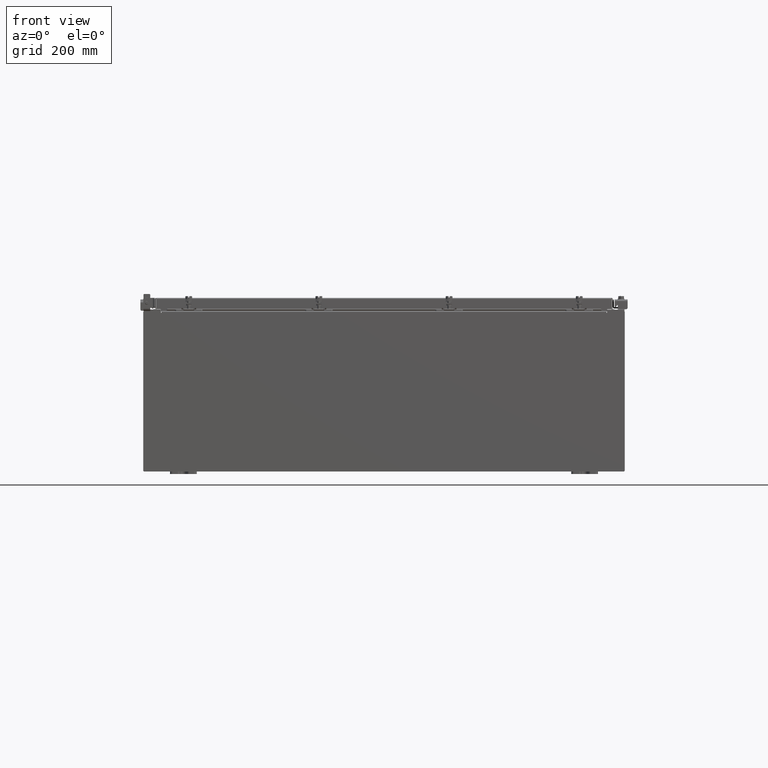
[diagram: clean part render]
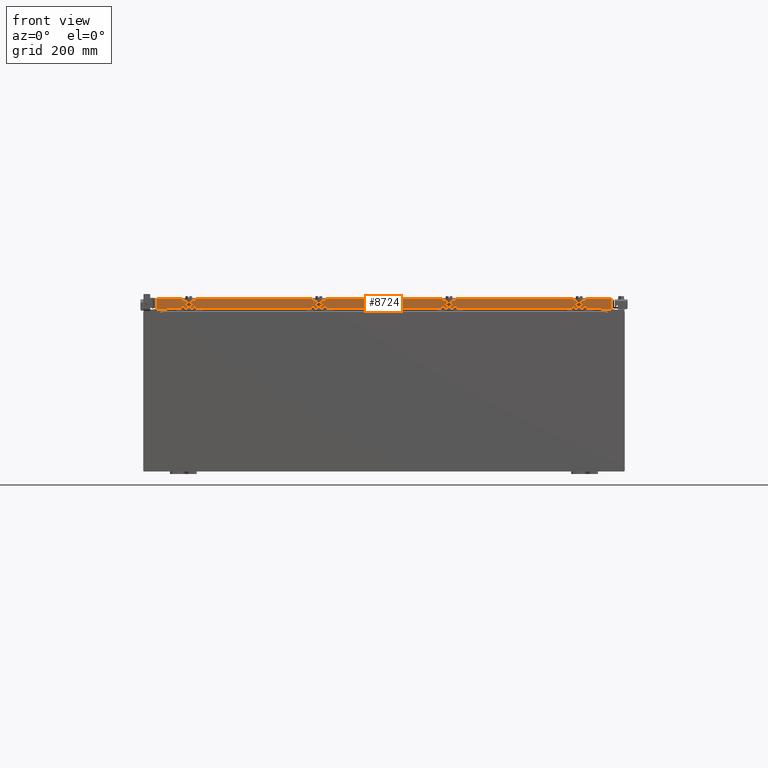
[diagram: same view with one face highlighted and labeled with its STEP entity id]
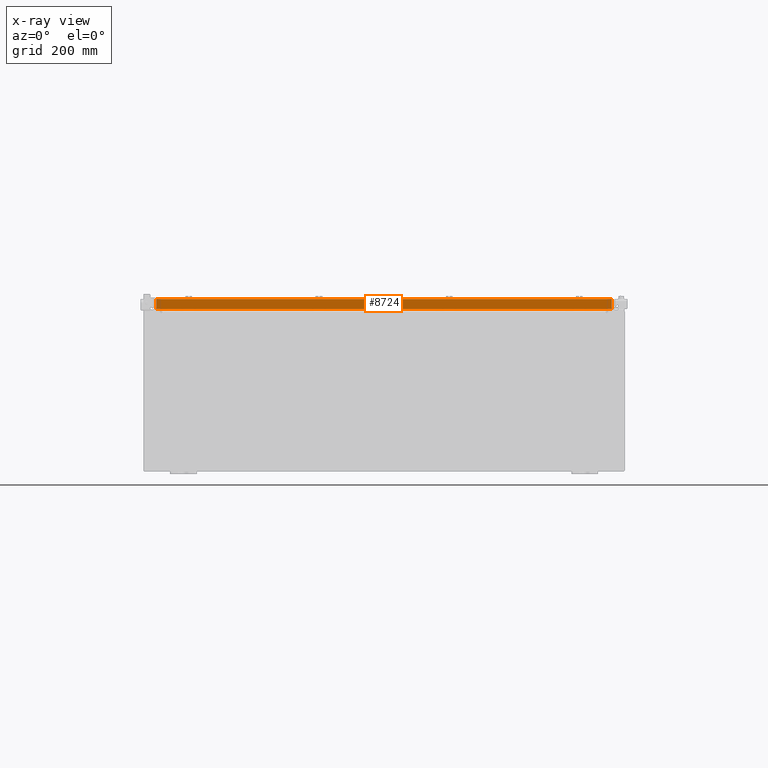
[diagram: x-ray of the same camera — body ghosted, the highlighted face saturated]
A machine part, front view. The second image highlights one B-rep face of the part: STEP entity #8724.
The next image is the same camera in x-ray: the body ghosted, the highlighted face saturated — about 0% of this face is hidden behind the body in this view.
In plain terms, the highlighted planar face has unit normal (-0, 1, -0).
Its self-contained STEP definition (entity closure, byte-faithful):
#721 = LINE ( 'NONE', #1333, #22423 ) ;
#1206 = DIRECTION ( 'NONE',  ( -1.000000000000000000, 0.0000000000000000000, 0.0000000000000000000 ) ) ;
#1333 = CARTESIAN_POINT ( 'NONE',  ( -17.00515786437626900, -17.09400000000000100, 4.808052468849102900E-014 ) ) ;
#2658 = DIRECTION ( 'NONE',  ( -1.000000000000000000, 4.379057701015054300E-047, 1.238552822680358400E-016 ) ) ;
#2684 = VECTOR ( 'NONE', #13430, 39.37007874015748100 ) ;
#3425 = DIRECTION ( 'NONE',  ( 0.0000000000000000000, -2.818880942772360500E-015, -1.000000000000000000 ) ) ;
#5800 = LINE ( 'NONE', #21259, #16393 ) ;
#5904 = CARTESIAN_POINT ( 'NONE',  ( -16.25515786437626900, -17.09399999999999100, -0.8500000000000020900 ) ) ;
#7368 = DIRECTION ( 'NONE',  ( 0.0000000000000000000, 2.818880942772360100E-015, 1.000000000000000000 ) ) ;
#7474 = CARTESIAN_POINT ( 'NONE',  ( 16.25515786437626900, -17.09399999999999100, -0.8500000000000020900 ) ) ;
#8325 = LINE ( 'NONE', #15562, #2684 ) ;
#8724 = ADVANCED_FACE ( 'NONE', ( #17265 ), #11508, .F. ) ;
#9479 = DIRECTION ( 'NONE',  ( -0.0000000000000000000, -2.818880942772360500E-015, -1.000000000000000000 ) ) ;
#9560 = EDGE_CURVE ( 'NONE', #16626, #17229, #721, .T. ) ;
#10503 = ORIENTED_EDGE ( 'NONE', *, *, #14050, .F. ) ;
#11508 = PLANE ( 'NONE',  #14627 ) ;
#11583 = CARTESIAN_POINT ( 'NONE',  ( 17.00515786437626900, -17.09400000000000100, -0.07470000000000015500 ) ) ;
#13184 = CARTESIAN_POINT ( 'NONE',  ( 17.09399999999999800, -17.09400000000000100, -0.8499999999999999800 ) ) ;
#13430 = DIRECTION ( 'NONE',  ( -1.000000000000000000, 4.379057701015054300E-047, 1.238552822680358400E-016 ) ) ;
#13736 = CARTESIAN_POINT ( 'NONE',  ( 17.00515786437626900, -17.09400000000000100, -0.8499999999999999800 ) ) ;
#14050 = EDGE_CURVE ( 'NONE', #16626, #15156, #5800, .T. ) ;
#14627 = AXIS2_PLACEMENT_3D ( 'NONE', #17876, #19988, #7368 ) ;
#15156 = VERTEX_POINT ( 'NONE', #22727 ) ;
#15562 = CARTESIAN_POINT ( 'NONE',  ( 17.09399999999999800, -17.09400000000000100, -0.8499999999999999800 ) ) ;
#15874 = EDGE_CURVE ( 'NONE', #22501, #17229, #8325, .T. ) ;
#15984 = EDGE_CURVE ( 'NONE', #15156, #18755, #23093, .T. ) ;
#16061 = ORIENTED_EDGE ( 'NONE', *, *, #9560, .T. ) ;
#16393 = VECTOR ( 'NONE', #25351, 39.37007874015748100 ) ;
#16626 = VERTEX_POINT ( 'NONE', #22039 ) ;
#17229 = VERTEX_POINT ( 'NONE', #17718 ) ;
#17265 = FACE_OUTER_BOUND ( 'NONE', #19843, .T. ) ;
#17551 = VECTOR ( 'NONE', #9479, 39.37007874015748100 ) ;
#17718 = CARTESIAN_POINT ( 'NONE',  ( -17.00515786437626900, -17.09400000000000100, -0.8499999999999955400 ) ) ;
#17876 = CARTESIAN_POINT ( 'NONE',  ( 0.0000000000000000000, -17.09400000000000100, 4.808052468849102900E-014 ) ) ;
#18755 = VERTEX_POINT ( 'NONE', #13736 ) ;
#19843 = EDGE_LOOP ( 'NONE', ( #10503, #16061, #21831, #19902, #25760, #24534 ) ) ;
#19902 = ORIENTED_EDGE ( 'NONE', *, *, #20629, .F. ) ;
#19988 = DIRECTION ( 'NONE',  ( -3.491332948470575600E-031, 1.000000000000000000, -2.818880942772360100E-015 ) ) ;
#20104 = LINE ( 'NONE', #13184, #24988 ) ;
#20324 = VECTOR ( 'NONE', #1206, 39.37007874015748100 ) ;
#20629 = EDGE_CURVE ( 'NONE', #21838, #22501, #25847, .T. ) ;
#21259 = CARTESIAN_POINT ( 'NONE',  ( 17.09400000000000100, -17.09400000000000100, -0.08770000000000026400 ) ) ;
#21831 = ORIENTED_EDGE ( 'NONE', *, *, #15874, .F. ) ;
#21838 = VERTEX_POINT ( 'NONE', #26770 ) ;
#22039 = CARTESIAN_POINT ( 'NONE',  ( -17.00515786437626900, -17.09400000000000100, -0.08770000000000026400 ) ) ;
#22423 = VECTOR ( 'NONE', #3425, 39.37007874015748100 ) ;
#22501 = VERTEX_POINT ( 'NONE', #5904 ) ;
#22727 = CARTESIAN_POINT ( 'NONE',  ( 17.00515786437626900, -17.09400000000000100, -0.08770000000000026400 ) ) ;
#22807 = EDGE_CURVE ( 'NONE', #18755, #21838, #20104, .T. ) ;
#23093 = LINE ( 'NONE', #11583, #17551 ) ;
#24534 = ORIENTED_EDGE ( 'NONE', *, *, #15984, .F. ) ;
#24988 = VECTOR ( 'NONE', #2658, 39.37007874015748100 ) ;
#25351 = DIRECTION ( 'NONE',  ( 1.000000000000000000, 3.491332948470575600E-031, -9.516562228463834600E-046 ) ) ;
#25760 = ORIENTED_EDGE ( 'NONE', *, *, #22807, .F. ) ;
#25847 = LINE ( 'NONE', #7474, #20324 ) ;
#26770 = CARTESIAN_POINT ( 'NONE',  ( 16.25515786437626500, -17.09399999999999100, -0.8500000000000020900 ) ) ;